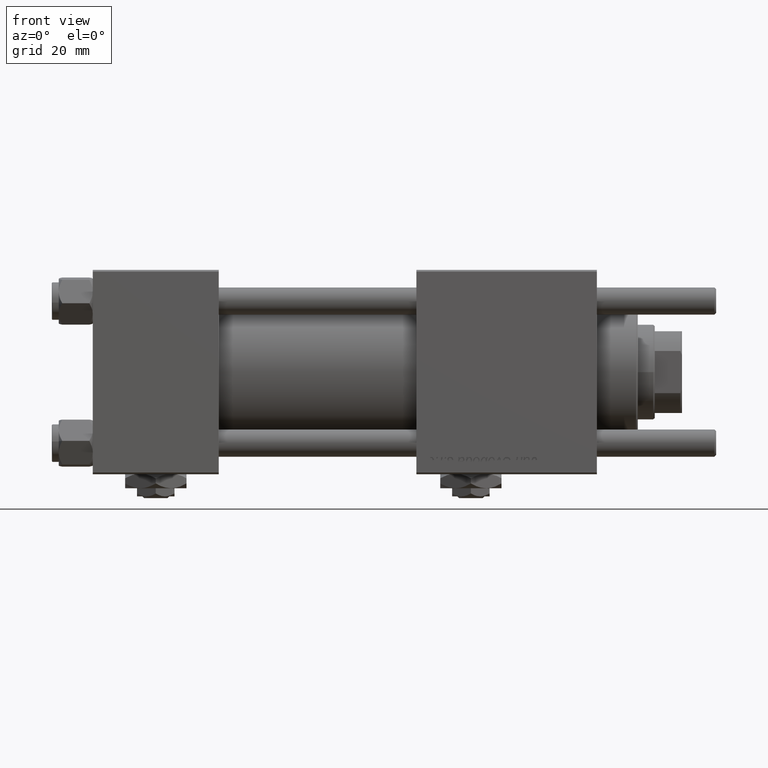
[diagram: clean part render]
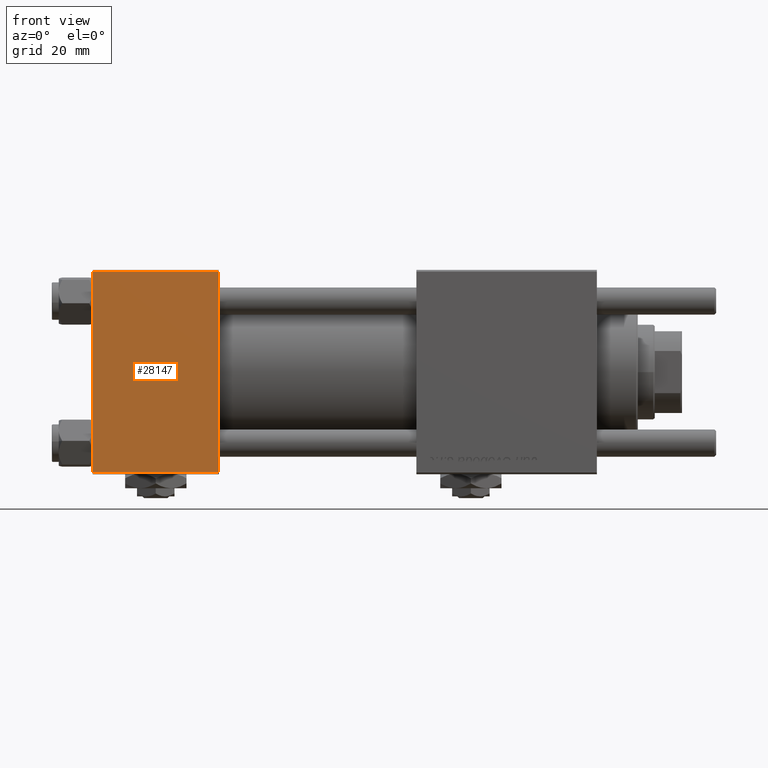
[diagram: same view with one face highlighted and labeled with its STEP entity id]
A machine part, front view. The second image highlights one B-rep face of the part: STEP entity #28147.
In plain terms, the highlighted planar face has unit normal (0, 1, 0).
Its self-contained STEP definition (entity closure, byte-faithful):
#194 = CARTESIAN_POINT ( 'NONE',  ( 0.000000000000000000, -30.00000000000000000, 29.99999999999999289 ) ) ;
#3238 = LINE ( 'NONE', #194, #55313 ) ;
#4992 = CARTESIAN_POINT ( 'NONE',  ( 37.00000000000000000, -30.00000000000000000, -29.50000000000001776 ) ) ;
#7015 = CARTESIAN_POINT ( 'NONE',  ( 37.00000000000000000, -30.00000000000000000, 29.99999999999999289 ) ) ;
#7299 = PLANE ( 'NONE',  #56035 ) ;
#7717 = VERTEX_POINT ( 'NONE', #10446 ) ;
#8074 = ORIENTED_EDGE ( 'NONE', *, *, #41785, .T. ) ;
#8982 = EDGE_CURVE ( 'NONE', #34740, #21248, #45791, .T. ) ;
#9986 = DIRECTION ( 'NONE',  ( 0.000000000000000000, 0.000000000000000000, -1.000000000000000000 ) ) ;
#10446 = CARTESIAN_POINT ( 'NONE',  ( 0.000000000000000000, -30.00000000000000000, 29.49999999999999289 ) ) ;
#12876 = VECTOR ( 'NONE', #23130, 1000.000000000000000 ) ;
#14525 = CARTESIAN_POINT ( 'NONE',  ( 0.000000000000000000, -30.00000000000000000, -29.50000000000001776 ) ) ;
#17442 = CARTESIAN_POINT ( 'NONE',  ( 37.00000000000000000, -30.00000000000000000, 29.49999999999999289 ) ) ;
#19753 = ORIENTED_EDGE ( 'NONE', *, *, #8982, .T. ) ;
#21248 = VERTEX_POINT ( 'NONE', #38140 ) ;
#21572 = ORIENTED_EDGE ( 'NONE', *, *, #38463, .T. ) ;
#22242 = EDGE_CURVE ( 'NONE', #36181, #21248, #35127, .T. ) ;
#23130 = DIRECTION ( 'NONE',  ( 1.000000000000000000, 0.000000000000000000, 0.000000000000000000 ) ) ;
#25451 = FACE_OUTER_BOUND ( 'NONE', #45233, .T. ) ;
#25742 = DIRECTION ( 'NONE',  ( 0.000000000000000000, -0.000000000000000000, 1.000000000000000000 ) ) ;
#28147 = ADVANCED_FACE ( 'NONE', ( #25451 ), #7299, .F. ) ;
#31692 = ORIENTED_EDGE ( 'NONE', *, *, #22242, .F. ) ;
#33904 = LINE ( 'NONE', #44841, #50637 ) ;
#34740 = VERTEX_POINT ( 'NONE', #14525 ) ;
#35127 = LINE ( 'NONE', #49739, #50588 ) ;
#36181 = VERTEX_POINT ( 'NONE', #17442 ) ;
#38140 = CARTESIAN_POINT ( 'NONE',  ( 37.00000000000000000, -30.00000000000000000, -29.50000000000001776 ) ) ;
#38463 = EDGE_CURVE ( 'NONE', #7717, #34740, #3238, .T. ) ;
#41785 = EDGE_CURVE ( 'NONE', #36181, #7717, #33904, .T. ) ;
#43451 = DIRECTION ( 'NONE',  ( -1.000000000000000000, 0.000000000000000000, 0.000000000000000000 ) ) ;
#44841 = CARTESIAN_POINT ( 'NONE',  ( 37.00000000000000000, -30.00000000000000000, 29.49999999999999289 ) ) ;
#45233 = EDGE_LOOP ( 'NONE', ( #21572, #19753, #31692, #8074 ) ) ;
#45791 = LINE ( 'NONE', #4992, #12876 ) ;
#49739 = CARTESIAN_POINT ( 'NONE',  ( 37.00000000000000000, -30.00000000000000000, 29.99999999999999289 ) ) ;
#50588 = VECTOR ( 'NONE', #57771, 1000.000000000000000 ) ;
#50637 = VECTOR ( 'NONE', #43451, 1000.000000000000000 ) ;
#51706 = DIRECTION ( 'NONE',  ( -0.000000000000000000, 1.000000000000000000, 0.000000000000000000 ) ) ;
#55313 = VECTOR ( 'NONE', #9986, 1000.000000000000000 ) ;
#56035 = AXIS2_PLACEMENT_3D ( 'NONE', #7015, #51706, #25742 ) ;
#57771 = DIRECTION ( 'NONE',  ( 0.000000000000000000, 0.000000000000000000, -1.000000000000000000 ) ) ;